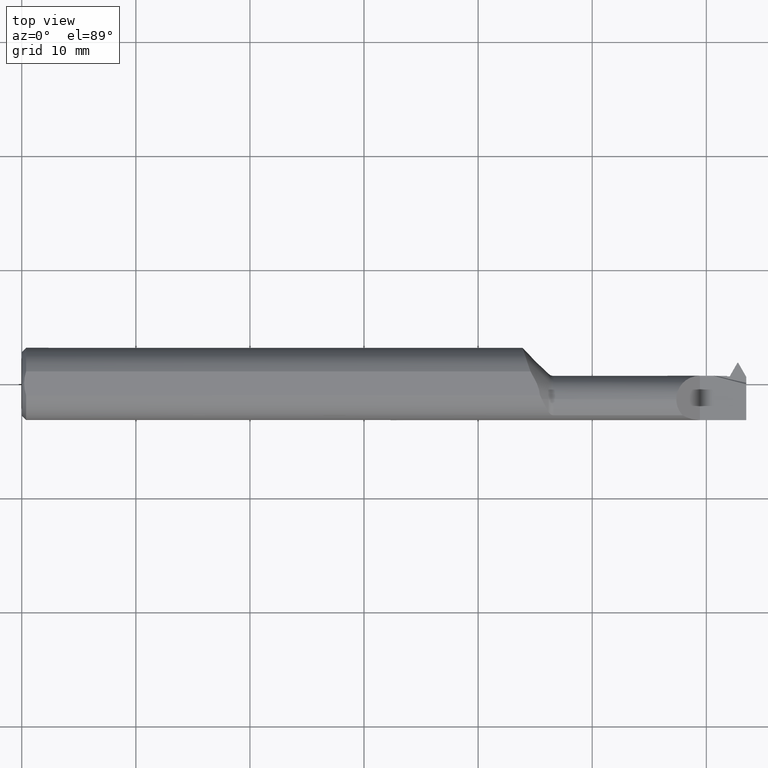
[diagram: clean part render]
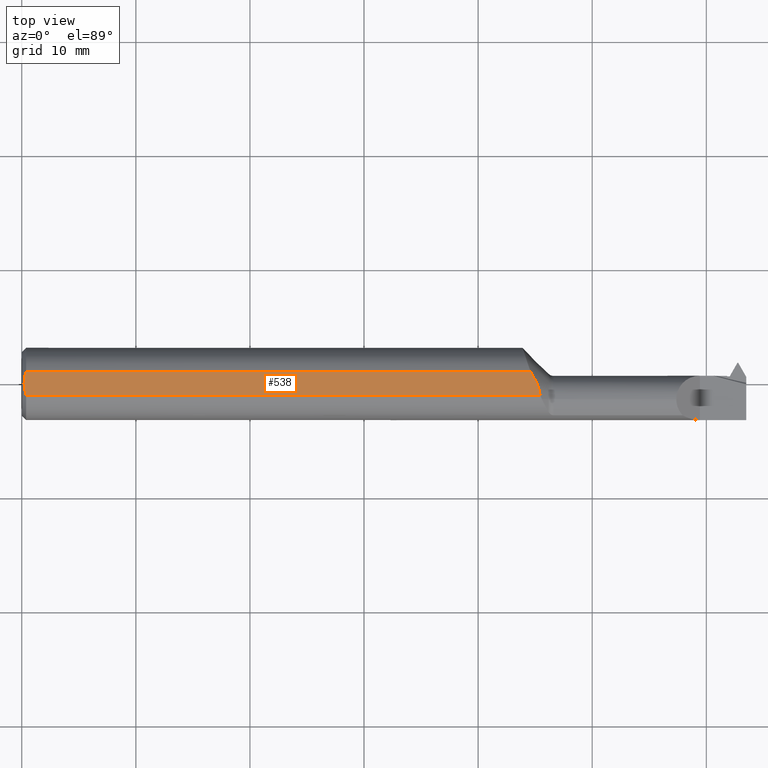
[diagram: same view with one face highlighted and labeled with its STEP entity id]
A machine part, top view. The second image highlights one B-rep face of the part: STEP entity #538.
In plain terms, the highlighted planar face has unit normal (-0, 0, -1).
Its self-contained STEP definition (entity closure, byte-faithful):
#3 = VERTEX_POINT ( 'NONE', #824 ) ;
#31 = CARTESIAN_POINT ( 'NONE',  ( 0.007999999999999184846, 0.007018361296229131373, 0.1178499999999999687 ) ) ;
#37 = CARTESIAN_POINT ( 'NONE',  ( 0.01102996446499183124, -0.02773742113353930630, 0.1178499999999999687 ) ) ;
#56 = CARTESIAN_POINT ( 'NONE',  ( 0.01499999999999915117, -0.04121771463824756843, 0.1178499999999999687 ) ) ;
#102 = DIRECTION ( 'NONE',  ( -1.000000000000000000, 0.000000000000000000, 0.000000000000000000 ) ) ;
#133 = VECTOR ( 'NONE', #465, 39.37007874015748143 ) ;
#174 = EDGE_CURVE ( 'NONE', #602, #813, #560, .T. ) ;
#224 = AXIS2_PLACEMENT_3D ( 'NONE', #590, #356, #102 ) ;
#247 = CARTESIAN_POINT ( 'NONE',  ( 2.500000000000000000, 0.04121771463824756843, 0.1178499999999999687 ) ) ;
#248 = PLANE ( 'NONE',  #224 ) ;
#257 = EDGE_LOOP ( 'NONE', ( #579, #1038, #909, #775, #735 ) ) ;
#307 = CARTESIAN_POINT ( 'NONE',  ( 0.007999999999999047803, 2.632898894288484946E-17, 0.1178499999999999687 ) ) ;
#327 = FACE_OUTER_BOUND ( 'NONE', #257, .T. ) ;
#335 = CARTESIAN_POINT ( 'NONE',  ( 1.755585030903349830, 0.04121771463824760312, 0.1178499999999999687 ) ) ;
#350 = CARTESIAN_POINT ( 'NONE',  ( 0.01104754996126543383, 0.02780897607398546620, 0.1178499999999999687 ) ) ;
#356 = DIRECTION ( 'NONE',  ( -0.000000000000000000, 0.000000000000000000, -1.000000000000000000 ) ) ;
#403 = LINE ( 'NONE', #718, #880 ) ;
#415 = B_SPLINE_CURVE_WITH_KNOTS ( 'NONE', 3,
 ( #615, #540, #752, #747, #764, #910 ),
 .UNSPECIFIED., .F., .F.,
 ( 4, 2, 4 ),
 ( 0.004207182444982577110, 0.005343303849432505005, 0.006479425253882432900 ),
 .UNSPECIFIED. ) ;
#417 = CARTESIAN_POINT ( 'NONE',  ( 0.01280221648460394893, 0.03456054612938445209, 0.1178499999999999270 ) ) ;
#465 = DIRECTION ( 'NONE',  ( 1.000000000000000000, 0.000000000000000000, 0.000000000000000000 ) ) ;
#490 = EDGE_CURVE ( 'NONE', #3, #874, #403, .T. ) ;
#538 = ADVANCED_FACE ( 'NONE', ( #327 ), #248, .F. ) ;
#540 = CARTESIAN_POINT ( 'NONE',  ( 1.763482288298127809, 0.02863970128293887377, 0.1178499999999999270 ) ) ;
#560 = LINE ( 'NONE', #247, #133 ) ;
#572 = CARTESIAN_POINT ( 'NONE',  ( 0.01499999999999915117, -0.04121771463824756843, 0.1178499999999999687 ) ) ;
#579 = ORIENTED_EDGE ( 'NONE', *, *, #716, .F. ) ;
#590 = CARTESIAN_POINT ( 'NONE',  ( 0.000000000000000000, 0.1749999999999999889, 0.1178499999999999687 ) ) ;
#602 = VERTEX_POINT ( 'NONE', #906 ) ;
#615 = CARTESIAN_POINT ( 'NONE',  ( 1.755585030903349830, 0.04121771463824760312, 0.1178499999999999687 ) ) ;
#622 = B_SPLINE_CURVE_WITH_KNOTS ( 'NONE', 3,
 ( #307, #927, #988, #37, #859, #56 ),
 .UNSPECIFIED., .F., .F.,
 ( 4, 2, 4 ),
 ( 0.003850422183559877847, 0.004377080812200871869, 0.004903739440841865457 ),
 .UNSPECIFIED. ) ;
#633 = B_SPLINE_CURVE_WITH_KNOTS ( 'NONE', 3,
 ( #901, #417, #350, #966, #31, #983 ),
 .UNSPECIFIED., .F., .F.,
 ( 4, 2, 4 ),
 ( 0.002796087195136467366, 0.003323254689348172607, 0.003850422183559877847 ),
 .UNSPECIFIED. ) ;
#683 = EDGE_CURVE ( 'NONE', #893, #874, #622, .T. ) ;
#716 = EDGE_CURVE ( 'NONE', #813, #3, #415, .T. ) ;
#718 = CARTESIAN_POINT ( 'NONE',  ( 2.500000000000000000, -0.04121771463824756843, 0.1178499999999999687 ) ) ;
#735 = ORIENTED_EDGE ( 'NONE', *, *, #490, .F. ) ;
#747 = CARTESIAN_POINT ( 'NONE',  ( 1.782561937722505485, -0.01198735520905802772, 0.1178499999999999687 ) ) ;
#752 = CARTESIAN_POINT ( 'NONE',  ( 1.770747573444180434, 0.01566527478089949424, 0.1178499999999999687 ) ) ;
#764 = CARTESIAN_POINT ( 'NONE',  ( 1.786881237334626338, -0.02626475047714148248, 0.1178499999999999687 ) ) ;
#775 = ORIENTED_EDGE ( 'NONE', *, *, #683, .T. ) ;
#791 = DIRECTION ( 'NONE',  ( -1.000000000000000000, -0.000000000000000000, -0.000000000000000000 ) ) ;
#808 = CARTESIAN_POINT ( 'NONE',  ( 0.007999999999999047803, 2.632898894288484946E-17, 0.1178499999999999687 ) ) ;
#813 = VERTEX_POINT ( 'NONE', #335 ) ;
#824 = CARTESIAN_POINT ( 'NONE',  ( 1.788474909266177582, -0.04121771463824756149, 0.1178499999999999687 ) ) ;
#859 = CARTESIAN_POINT ( 'NONE',  ( 0.01281255759526339112, -0.03459186974053779506, 0.1178499999999999687 ) ) ;
#874 = VERTEX_POINT ( 'NONE', #572 ) ;
#880 = VECTOR ( 'NONE', #791, 39.37007874015748143 ) ;
#893 = VERTEX_POINT ( 'NONE', #808 ) ;
#901 = CARTESIAN_POINT ( 'NONE',  ( 0.01499999999999915637, 0.04121771463824756843, 0.1178499999999999687 ) ) ;
#906 = CARTESIAN_POINT ( 'NONE',  ( 0.01499999999999915637, 0.04121771463824756843, 0.1178499999999999687 ) ) ;
#909 = ORIENTED_EDGE ( 'NONE', *, *, #1009, .T. ) ;
#910 = CARTESIAN_POINT ( 'NONE',  ( 1.788474909266177582, -0.04121771463824756149, 0.1178499999999999687 ) ) ;
#927 = CARTESIAN_POINT ( 'NONE',  ( 0.007999999999999179642, -0.007011586594704995526, 0.1178499999999999270 ) ) ;
#966 = CARTESIAN_POINT ( 'NONE',  ( 0.008644093100393480250, 0.01407024034377184728, 0.1178499999999999687 ) ) ;
#983 = CARTESIAN_POINT ( 'NONE',  ( 0.007999999999999047803, 2.632898894288484946E-17, 0.1178499999999999687 ) ) ;
#988 = CARTESIAN_POINT ( 'NONE',  ( 0.008629761876563279976, -0.01395896473269913479, 0.1178499999999999687 ) ) ;
#1009 = EDGE_CURVE ( 'NONE', #602, #893, #633, .T. ) ;
#1038 = ORIENTED_EDGE ( 'NONE', *, *, #174, .F. ) ;